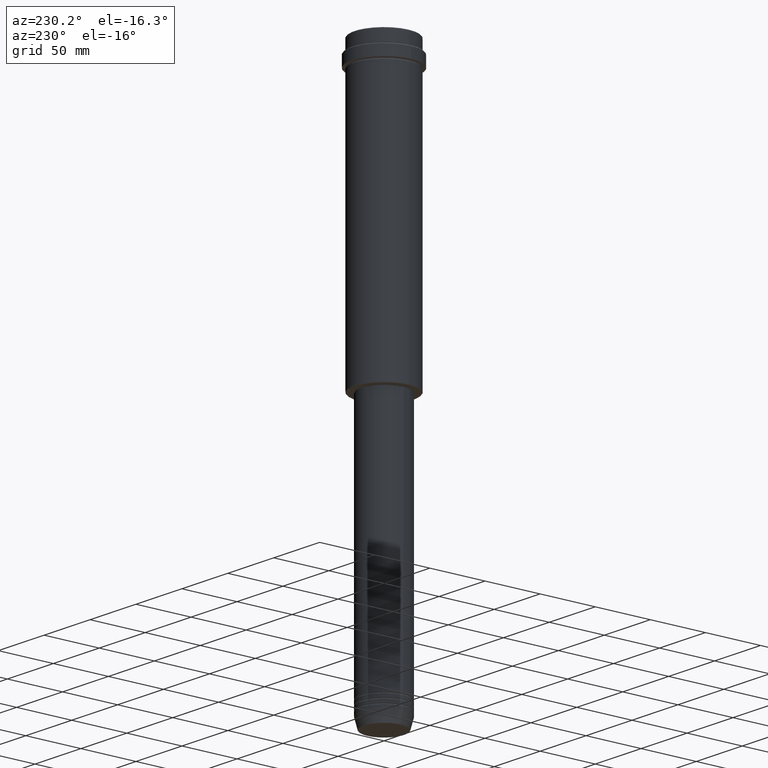
[diagram: clean part render]
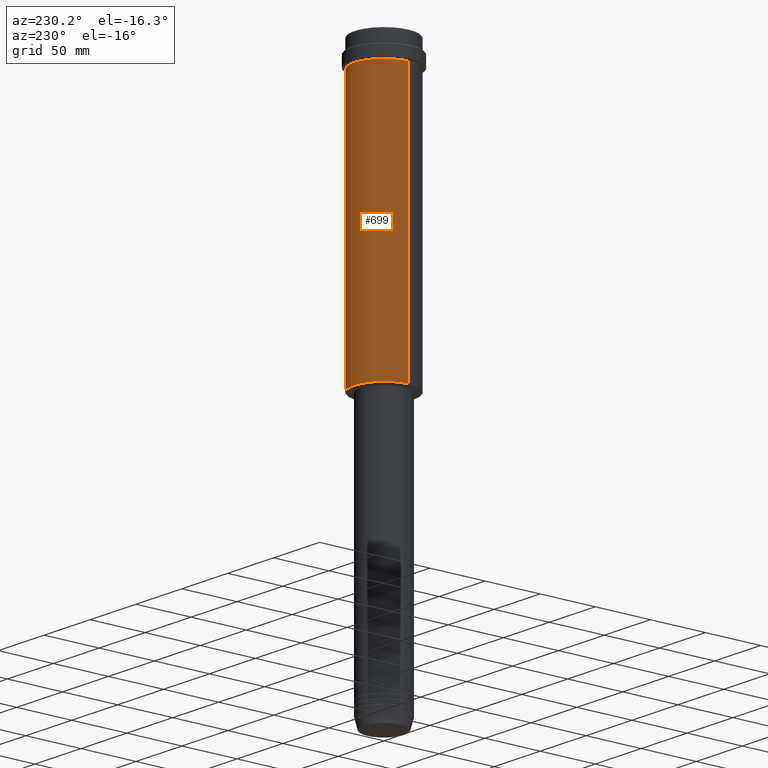
[diagram: same view with one face highlighted and labeled with its STEP entity id]
A machine part, auxiliary view. The second image highlights one B-rep face of the part: STEP entity #699.
In plain terms, the highlighted cylindrical surface (partial cylindrical patch) has radius 27 mm, axis along (-0, -0, 1).
Its self-contained STEP definition (entity closure, byte-faithful):
#2 = CARTESIAN_POINT ( 'NONE',  ( -27.00000000000000355, 3.306546357697854128E-15, -257.5000000000000568 ) ) ;
#56 = VECTOR ( 'NONE', #1360, 1000.000000000000000 ) ;
#78 = DIRECTION ( 'NONE',  ( -0.000000000000000000, -0.000000000000000000, 1.000000000000000000 ) ) ;
#81 = CARTESIAN_POINT ( 'NONE',  ( 27.00000000000000355, 0.000000000000000000, 0.000000000000000000 ) ) ;
#93 = DIRECTION ( 'NONE',  ( 1.000000000000000000, 0.000000000000000000, 0.000000000000000000 ) ) ;
#125 = VECTOR ( 'NONE', #198, 1000.000000000000000 ) ;
#144 = AXIS2_PLACEMENT_3D ( 'NONE', #437, #1402, #865 ) ;
#160 = CARTESIAN_POINT ( 'NONE',  ( 27.00000000000000355, 0.000000000000000000, -23.00000000000001421 ) ) ;
#198 = DIRECTION ( 'NONE',  ( -0.000000000000000000, -0.000000000000000000, 1.000000000000000000 ) ) ;
#212 = VERTEX_POINT ( 'NONE', #1059 ) ;
#230 = CIRCLE ( 'NONE', #418, 27.00000000000000355 ) ;
#235 = EDGE_CURVE ( 'NONE', #212, #447, #729, .T. ) ;
#320 = CARTESIAN_POINT ( 'NONE',  ( 0.000000000000000000, 0.000000000000000000, 0.000000000000000000 ) ) ;
#418 = AXIS2_PLACEMENT_3D ( 'NONE', #632, #78, #1385 ) ;
#437 = CARTESIAN_POINT ( 'NONE',  ( 0.000000000000000000, 0.000000000000000000, -257.5000000000000568 ) ) ;
#447 = VERTEX_POINT ( 'NONE', #2 ) ;
#526 = CARTESIAN_POINT ( 'NONE',  ( -27.00000000000000355, 3.306546357697854128E-15, -23.00000000000001421 ) ) ;
#546 = EDGE_LOOP ( 'NONE', ( #902, #1019, #1110, #1354 ) ) ;
#632 = CARTESIAN_POINT ( 'NONE',  ( 0.000000000000000000, 0.000000000000000000, -23.00000000000001421 ) ) ;
#699 = ADVANCED_FACE ( 'NONE', ( #1376 ), #1165, .T. ) ;
#729 = CIRCLE ( 'NONE', #144, 27.00000000000000355 ) ;
#733 = AXIS2_PLACEMENT_3D ( 'NONE', #320, #1073, #93 ) ;
#767 = EDGE_CURVE ( 'NONE', #447, #1272, #1159, .T. ) ;
#788 = EDGE_CURVE ( 'NONE', #212, #1290, #1060, .T. ) ;
#865 = DIRECTION ( 'NONE',  ( -1.000000000000000000, 0.000000000000000000, 0.000000000000000000 ) ) ;
#902 = ORIENTED_EDGE ( 'NONE', *, *, #235, .T. ) ;
#939 = CARTESIAN_POINT ( 'NONE',  ( -27.00000000000000355, 3.306546357697854128E-15, 0.000000000000000000 ) ) ;
#1019 = ORIENTED_EDGE ( 'NONE', *, *, #767, .T. ) ;
#1059 = CARTESIAN_POINT ( 'NONE',  ( 27.00000000000000355, 0.000000000000000000, -257.5000000000000568 ) ) ;
#1060 = LINE ( 'NONE', #81, #125 ) ;
#1073 = DIRECTION ( 'NONE',  ( -0.000000000000000000, -0.000000000000000000, 1.000000000000000000 ) ) ;
#1110 = ORIENTED_EDGE ( 'NONE', *, *, #1281, .F. ) ;
#1159 = LINE ( 'NONE', #939, #56 ) ;
#1165 = CYLINDRICAL_SURFACE ( 'NONE', #733, 27.00000000000000355 ) ;
#1272 = VERTEX_POINT ( 'NONE', #526 ) ;
#1281 = EDGE_CURVE ( 'NONE', #1290, #1272, #230, .T. ) ;
#1290 = VERTEX_POINT ( 'NONE', #160 ) ;
#1354 = ORIENTED_EDGE ( 'NONE', *, *, #788, .F. ) ;
#1360 = DIRECTION ( 'NONE',  ( -0.000000000000000000, -0.000000000000000000, 1.000000000000000000 ) ) ;
#1376 = FACE_OUTER_BOUND ( 'NONE', #546, .T. ) ;
#1385 = DIRECTION ( 'NONE',  ( 1.000000000000000000, 0.000000000000000000, 0.000000000000000000 ) ) ;
#1402 = DIRECTION ( 'NONE',  ( -0.000000000000000000, -0.000000000000000000, 1.000000000000000000 ) ) ;